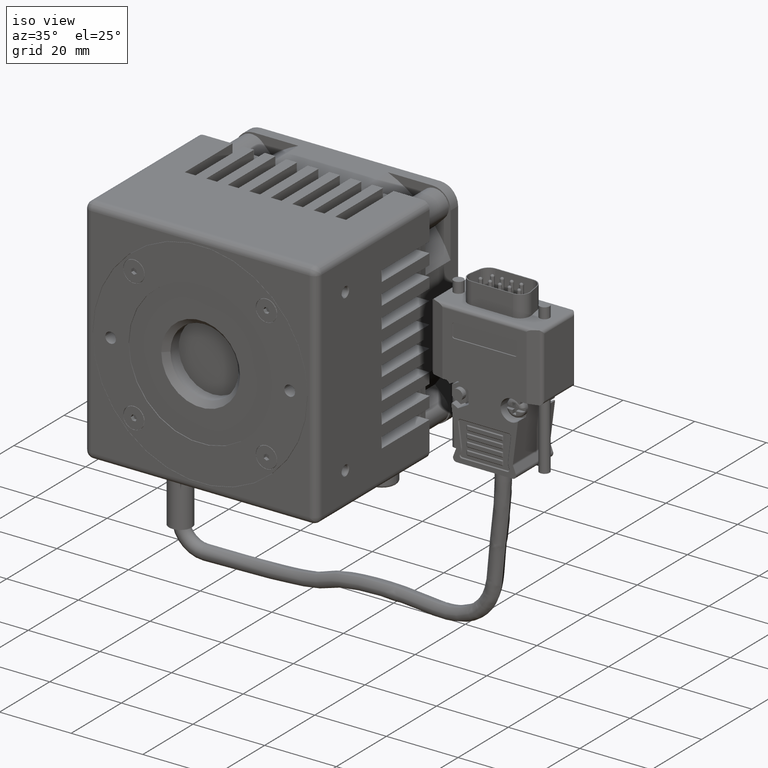
[diagram: clean part render]
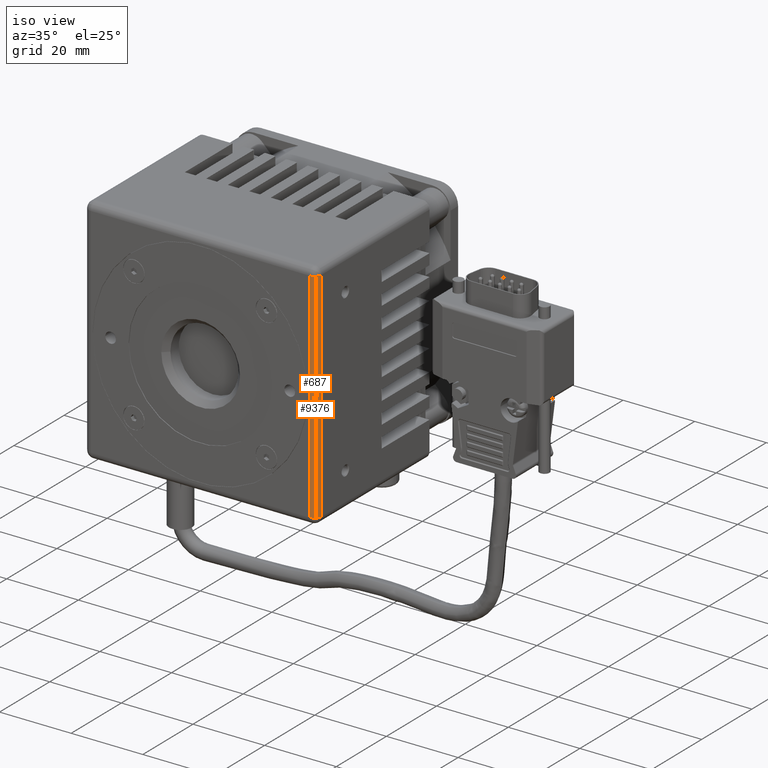
[diagram: same view with one multi-face feature highlighted, each face labeled with its STEP entity id]
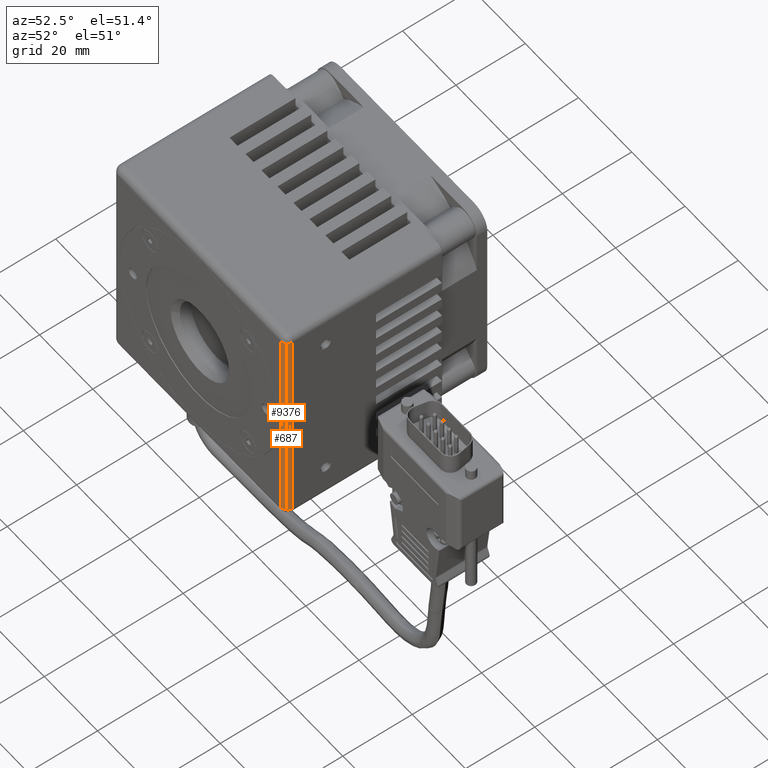
[diagram: same view with one multi-face feature highlighted, each face labeled with its STEP entity id]
A machine part, iso view. The highlighted faces form ONE feature: a constant-radius fillet chain: 2 tangent blend faces with common blend radius 2 mm. The faces share edges in the B-rep.
A second angle (auxiliary view) of the same feature is appended — it is thin or edge-on in the first view.
Their STEP definitions:
[1] entity #687 (Cylinder):
#687 = ADVANCED_FACE ( 'NONE', ( #18369 ), #27857, .T. ) ;
#1057 = CARTESIAN_POINT ( 'NONE',  ( 30.50000000000000000, 2.000000000000000000, -30.50000000000000000 ) ) ;
#4212 = DIRECTION ( 'NONE',  ( 0.000000000000000000, -1.000000000000000000, 0.000000000000000000 ) ) ;
#4863 = CARTESIAN_POINT ( 'NONE',  ( 32.50000000000000000, 2.000000000000000000, 30.50000000000000000 ) ) ;
#5050 = CARTESIAN_POINT ( 'NONE',  ( 30.50000000000000000, 2.000000000000000000, 30.50000000000000000 ) ) ;
#6873 = ORIENTED_EDGE ( 'NONE', *, *, #18626, .T. ) ;
#9244 = CARTESIAN_POINT ( 'NONE',  ( 32.50000000000000000, 2.000000000000000000, -30.50000000000000000 ) ) ;
#12626 = AXIS2_PLACEMENT_3D ( 'NONE', #1057, #12707, #4212 ) ;
#12707 = DIRECTION ( 'NONE',  ( -2.220446049250290204E-15, 0.000000000000000000, 1.000000000000000000 ) ) ;
#14595 = CIRCLE ( 'NONE', #34089, 2.000000000000001776 ) ;
#15206 = DIRECTION ( 'NONE',  ( 1.366428338000190029E-16, 1.366428338000190029E-16, 1.000000000000000000 ) ) ;
#16284 = LINE ( 'NONE', #32077, #16722 ) ;
#16722 = VECTOR ( 'NONE', #29129, 1000.000000000000000 ) ;
#17227 = EDGE_LOOP ( 'NONE', ( #40846, #39141, #33469, #6873 ) ) ;
#17344 = EDGE_CURVE ( 'NONE', #27700, #39894, #19605, .T. ) ;
#18369 = FACE_OUTER_BOUND ( 'NONE', #17227, .T. ) ;
#18626 = EDGE_CURVE ( 'NONE', #39894, #25513, #14595, .T. ) ;
#19546 = EDGE_CURVE ( 'NONE', #24704, #27700, #38873, .T. ) ;
#19605 = LINE ( 'NONE', #25909, #25469 ) ;
#21480 = EDGE_CURVE ( 'NONE', #24704, #25513, #16284, .T. ) ;
#24704 = VERTEX_POINT ( 'NONE', #31596 ) ;
#25469 = VECTOR ( 'NONE', #35790, 1000.000000000000000 ) ;
#25513 = VERTEX_POINT ( 'NONE', #25649 ) ;
#25649 = CARTESIAN_POINT ( 'NONE',  ( 31.91421356237308871, 0.5857864376269015239, 30.50000000000000000 ) ) ;
#25909 = CARTESIAN_POINT ( 'NONE',  ( 32.50000000000000000, 2.000000000000000000, 16.25000000000000000 ) ) ;
#27700 = VERTEX_POINT ( 'NONE', #9244 ) ;
#27857 = CYLINDRICAL_SURFACE ( 'NONE', #40125, 2.000000000000000888 ) ;
#29129 = DIRECTION ( 'NONE',  ( 1.366428338000190029E-16, 1.366428338000190029E-16, 1.000000000000000000 ) ) ;
#31596 = CARTESIAN_POINT ( 'NONE',  ( 31.91421356237308871, 0.5857864376269015239, -30.49999999999999645 ) ) ;
#32077 = CARTESIAN_POINT ( 'NONE',  ( 31.91421356237309581, 0.5857864376269058537, 16.25000000000000000 ) ) ;
#33469 = ORIENTED_EDGE ( 'NONE', *, *, #17344, .T. ) ;
#34089 = AXIS2_PLACEMENT_3D ( 'NONE', #5050, #37062, #40219 ) ;
#35790 = DIRECTION ( 'NONE',  ( 2.732856676000389919E-16, 0.000000000000000000, 1.000000000000000000 ) ) ;
#37062 = DIRECTION ( 'NONE',  ( 0.000000000000000000, 0.000000000000000000, -1.000000000000000000 ) ) ;
#38873 = CIRCLE ( 'NONE', #12626, 2.000000000000000000 ) ;
#39141 = ORIENTED_EDGE ( 'NONE', *, *, #19546, .T. ) ;
#39894 = VERTEX_POINT ( 'NONE', #4863 ) ;
#40125 = AXIS2_PLACEMENT_3D ( 'NONE', #40684, #15206, #40891 ) ;
#40219 = DIRECTION ( 'NONE',  ( 1.000000000000000000, 0.000000000000000000, 0.000000000000000000 ) ) ;
#40684 = CARTESIAN_POINT ( 'NONE',  ( 30.50000000000000000, 2.000000000000000000, 16.25000000000000000 ) ) ;
#40846 = ORIENTED_EDGE ( 'NONE', *, *, #21480, .F. ) ;
#40891 = DIRECTION ( 'NONE',  ( 0.7071067811865481278, -0.7071067811865467956, 0.000000000000000000 ) ) ;
[2] entity #9376 (Cylinder):
#3342 = VERTEX_POINT ( 'NONE', #12701 ) ;
#4580 = DIRECTION ( 'NONE',  ( 1.000000000000000000, 0.000000000000000000, 0.000000000000000000 ) ) ;
#5578 = VERTEX_POINT ( 'NONE', #8204 ) ;
#7964 = CARTESIAN_POINT ( 'NONE',  ( 30.50000000000000000, 0.000000000000000000, 16.25000000000000000 ) ) ;
#8194 = DIRECTION ( 'NONE',  ( -2.732856676000389919E-16, 0.000000000000000000, -1.000000000000000000 ) ) ;
#8204 = CARTESIAN_POINT ( 'NONE',  ( 30.50000000000000000, 0.000000000000000000, 30.50000000000000000 ) ) ;
#9318 = DIRECTION ( 'NONE',  ( 1.366428338000190029E-16, 1.366428338000190029E-16, 1.000000000000000000 ) ) ;
#9376 = ADVANCED_FACE ( 'NONE', ( #25733 ), #16648, .T. ) ;
#10512 = DIRECTION ( 'NONE',  ( 0.000000000000000000, -1.000000000000000000, 0.000000000000000000 ) ) ;
#10994 = EDGE_LOOP ( 'NONE', ( #21451, #13869, #15688, #27599 ) ) ;
#12701 = CARTESIAN_POINT ( 'NONE',  ( 30.50000000000000000, 0.000000000000000000, -30.50000000000000000 ) ) ;
#13869 = ORIENTED_EDGE ( 'NONE', *, *, #21480, .T. ) ;
#15540 = AXIS2_PLACEMENT_3D ( 'NONE', #19825, #9318, #25935 ) ;
#15688 = ORIENTED_EDGE ( 'NONE', *, *, #20162, .T. ) ;
#16284 = LINE ( 'NONE', #32077, #16722 ) ;
#16648 = CYLINDRICAL_SURFACE ( 'NONE', #15540, 2.000000000000000888 ) ;
#16722 = VECTOR ( 'NONE', #29129, 1000.000000000000000 ) ;
#17445 = CARTESIAN_POINT ( 'NONE',  ( 30.50000000000000000, 2.000000000000000000, 30.50000000000000000 ) ) ;
#18393 = EDGE_CURVE ( 'NONE', #3342, #24704, #18735, .T. ) ;
#18735 = CIRCLE ( 'NONE', #20090, 2.000000000000000000 ) ;
#19825 = CARTESIAN_POINT ( 'NONE',  ( 30.50000000000000000, 2.000000000000000000, 16.25000000000000000 ) ) ;
#20090 = AXIS2_PLACEMENT_3D ( 'NONE', #29898, #39369, #10512 ) ;
#20162 = EDGE_CURVE ( 'NONE', #25513, #5578, #37547, .T. ) ;
#20823 = LINE ( 'NONE', #7964, #39695 ) ;
#21451 = ORIENTED_EDGE ( 'NONE', *, *, #18393, .T. ) ;
#21480 = EDGE_CURVE ( 'NONE', #24704, #25513, #16284, .T. ) ;
#24704 = VERTEX_POINT ( 'NONE', #31596 ) ;
#25513 = VERTEX_POINT ( 'NONE', #25649 ) ;
#25649 = CARTESIAN_POINT ( 'NONE',  ( 31.91421356237308871, 0.5857864376269015239, 30.50000000000000000 ) ) ;
#25733 = FACE_OUTER_BOUND ( 'NONE', #10994, .T. ) ;
#25935 = DIRECTION ( 'NONE',  ( 0.7071067811865481278, -0.7071067811865467956, 0.000000000000000000 ) ) ;
#27599 = ORIENTED_EDGE ( 'NONE', *, *, #39191, .T. ) ;
#29129 = DIRECTION ( 'NONE',  ( 1.366428338000190029E-16, 1.366428338000190029E-16, 1.000000000000000000 ) ) ;
#29898 = CARTESIAN_POINT ( 'NONE',  ( 30.50000000000000000, 2.000000000000000000, -30.50000000000000000 ) ) ;
#31596 = CARTESIAN_POINT ( 'NONE',  ( 31.91421356237308871, 0.5857864376269015239, -30.49999999999999645 ) ) ;
#32077 = CARTESIAN_POINT ( 'NONE',  ( 31.91421356237309581, 0.5857864376269058537, 16.25000000000000000 ) ) ;
#37217 = DIRECTION ( 'NONE',  ( 0.000000000000000000, 0.000000000000000000, -1.000000000000000000 ) ) ;
#37547 = CIRCLE ( 'NONE', #41578, 2.000000000000001776 ) ;
#39191 = EDGE_CURVE ( 'NONE', #5578, #3342, #20823, .T. ) ;
#39369 = DIRECTION ( 'NONE',  ( -2.220446049250290204E-15, 0.000000000000000000, 1.000000000000000000 ) ) ;
#39695 = VECTOR ( 'NONE', #8194, 1000.000000000000000 ) ;
#41578 = AXIS2_PLACEMENT_3D ( 'NONE', #17445, #37217, #4580 ) ;